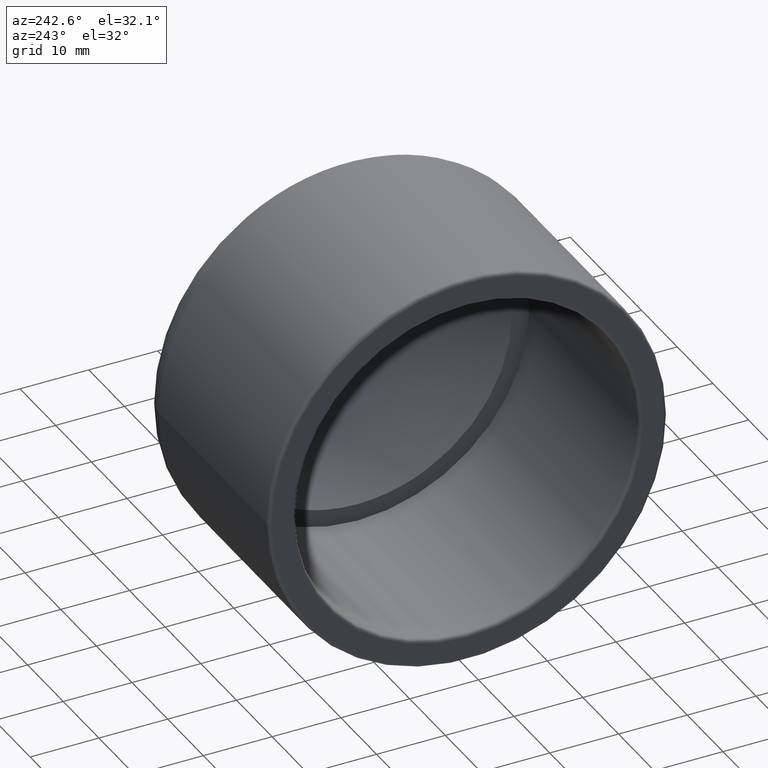
[diagram: clean part render]
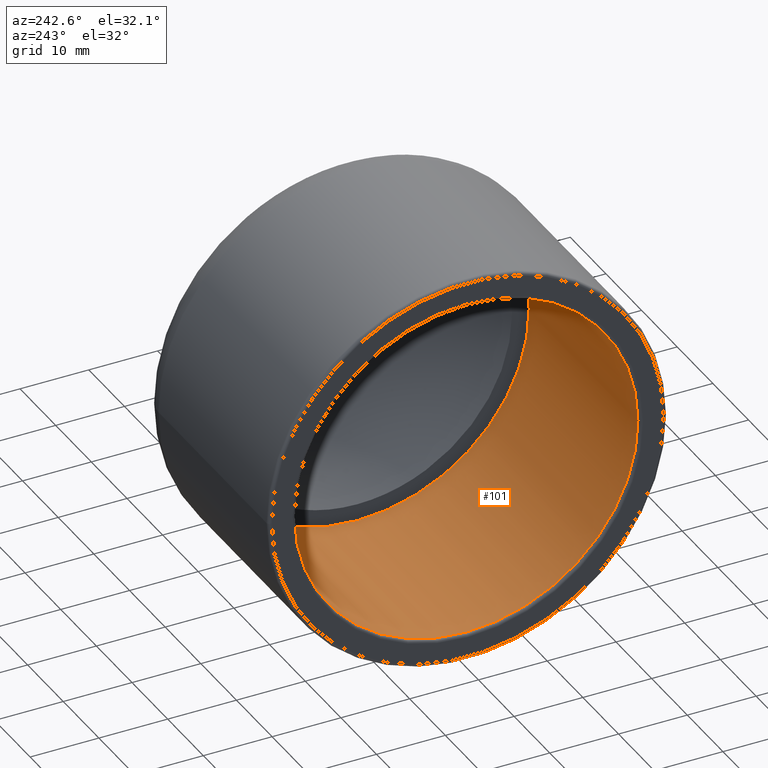
[diagram: same view with one face highlighted and labeled with its STEP entity id]
A machine part, auxiliary view. The second image highlights one B-rep face of the part: STEP entity #101.
In plain terms, the highlighted cylindrical surface (bore or boss wall) has radius 25 mm, axis along (1, 0, 0).
Its self-contained STEP definition (entity closure, byte-faithful):
#20=CYLINDRICAL_SURFACE('',#118,25.);
#25=FACE_BOUND('',#47,.T.);
#33=FACE_OUTER_BOUND('',#46,.T.);
#46=EDGE_LOOP('',(#86));
#47=EDGE_LOOP('',(#87));
#56=CIRCLE('',#114,25.);
#59=CIRCLE('',#119,25.);
#64=VERTEX_POINT('',#171);
#67=VERTEX_POINT('',#179);
#72=EDGE_CURVE('',#64,#64,#56,.T.);
#75=EDGE_CURVE('',#67,#67,#59,.T.);
#86=ORIENTED_EDGE('',*,*,#75,.T.);
#87=ORIENTED_EDGE('',*,*,#72,.F.);
#101=ADVANCED_FACE('',(#33,#25),#20,.F.);
#114=AXIS2_PLACEMENT_3D('',#172,#140,#141);
#118=AXIS2_PLACEMENT_3D('',#178,#148,#149);
#119=AXIS2_PLACEMENT_3D('',#180,#150,#151);
#140=DIRECTION('center_axis',(1.,1.93071343521368E-16,0.));
#141=DIRECTION('ref_axis',(1.94289029309402E-16,-1.,1.83697019872103E-16));
#148=DIRECTION('center_axis',(1.,1.93071343521368E-16,0.));
#149=DIRECTION('ref_axis',(-2.29701315439688E-16,1.,0.));
#150=DIRECTION('center_axis',(1.,1.93071343521368E-16,0.));
#151=DIRECTION('ref_axis',(0.,0.,-1.));
#171=CARTESIAN_POINT('',(-46.5,25.,-1.53080849893419E-15));
#172=CARTESIAN_POINT('Origin',(-46.5,-8.97781747374362E-15,0.));
#178=CARTESIAN_POINT('Origin',(-31.5,-6.08174732092309E-15,0.));
#179=CARTESIAN_POINT('',(-16.,25.,0.));
#180=CARTESIAN_POINT('Origin',(-16.,-3.08914149634189E-15,0.));